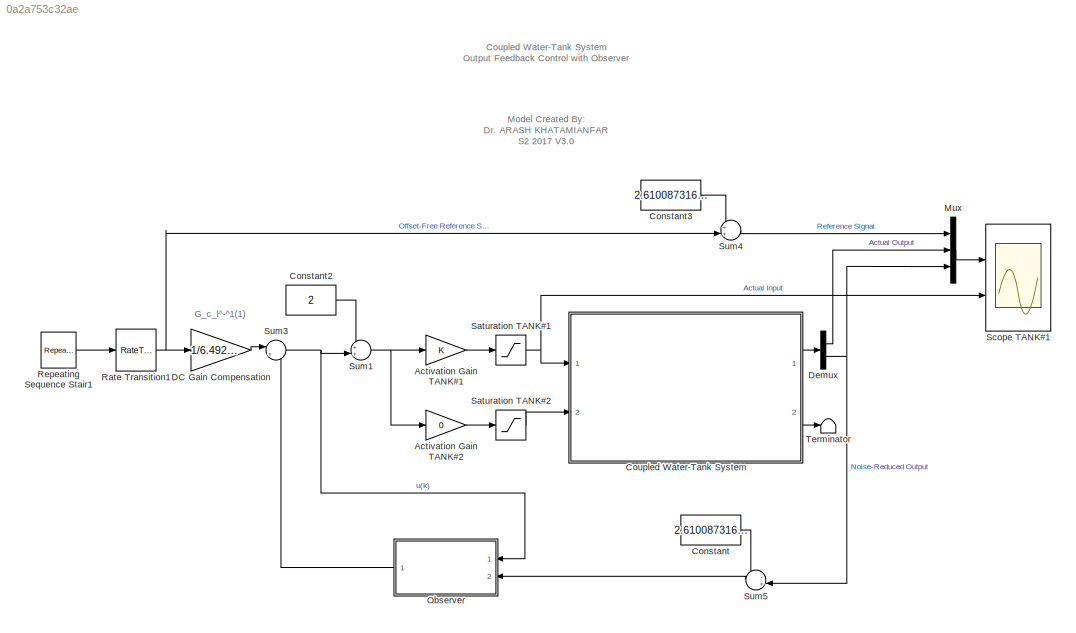
MODEL slx_0a2a753c32ae
KIND model
CONFIG AbsTol = auto
CONFIG FixedStep = 0.75
CONFIG MaxStep = auto
CONFIG MinStep = auto
CONFIG RelTol = 1e-3
CONFIG SampleTimeConstraint = Unconstrained
CONFIG Solver = FixedStepAuto
CONFIG SolverMode = Auto
CONFIG SolverName = FixedStepAuto
CONFIG StartTime = 0.0
CONFIG StopTime = 5*140*0.75
BLOCK [Gain] Activation Gain TANK#1
  OutDataTypeStr = Inherit: Inherit via internal rule
  ParamDataTypeStr = Inherit: Inherit via internal rule
  SaturateOnIntegerOverflow = off
BLOCK [Gain] Activation Gain TANK#2
  Gain = 0
  OutDataTypeStr = Inherit: Inherit via internal rule
  ParamDataTypeStr = Inherit: Inherit via internal rule
  SaturateOnIntegerOverflow = off
BLOCK [Constant] Constant
  Value = 2.610087316176470
BLOCK [Constant] Constant2
  Value = 2
BLOCK [Constant] Constant3
  Value = 2.610087316176470
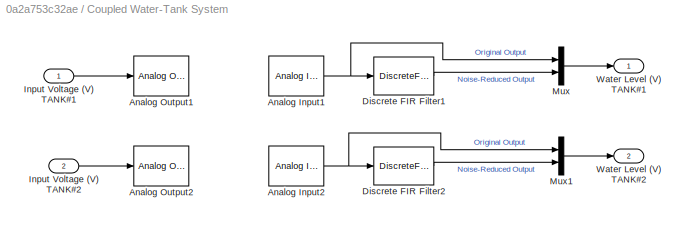
BLOCK [SubSystem] Coupled Water-Tank System
  Ports = [2, 2]
  RequestExecContextInheritance = off
  Variant = off
BLOCK [Reference] Coupled Water-Tank System/Analog Input1  REF=sldrtlib/Analog Input
  AttributesFormatString = National Instruments\nPCI-MIO-16E-4 [auto]
  Ports = [0, 1]
  SourceBlock = sldrtlib/Analog Input
  SourceType = Simulink Desktop Real-Time Analog Input
BLOCK [Reference] Coupled Water-Tank System/Analog Input2  REF=sldrtlib/Analog Input
  AttributesFormatString = National Instruments\nPCI-MIO-16E-4 [auto]
  Ports = [0, 1]
  SourceBlock = sldrtlib/Analog Input
  SourceType = Simulink Desktop Real-Time Analog Input
BLOCK [Reference] Coupled Water-Tank System/Analog Output1  REF=sldrtlib/Analog Output
  AttributesFormatString = National Instruments\nPCI-MIO-16E-4 [auto]
  Ports = [1]
  SourceBlock = sldrtlib/Analog Output
  SourceType = Simulink Desktop Real-Time Analog Output
BLOCK [Reference] Coupled Water-Tank System/Analog Output2  REF=sldrtlib/Analog Output
  AttributesFormatString = National Instruments\nPCI-MIO-16E-4 [auto]
  Ports = [1]
  SourceBlock = sldrtlib/Analog Output
  SourceType = Simulink Desktop Real-Time Analog Output
BLOCK [DiscreteFir] Coupled Water-Tank System/Discrete FIR Filter1
  Coefficients = [0.2 0.2 0.2 0.2 0.2]
  InputPortMap = u0
  OutputPortMap = o0
  Ports = [1, 1]
  SampleTime = 0.75
BLOCK [DiscreteFir] Coupled Water-Tank System/Discrete FIR Filter2
  Coefficients = [0.2 0.2 0.2 0.2 0.2]
  InputPortMap = u0
  OutputPortMap = o0
  Ports = [1, 1]
  SampleTime = 0.75
BLOCK [Inport] Coupled Water-Tank System/Input Voltage (V) TANK#1
  IconDisplay = Port number
BLOCK [Inport] Coupled Water-Tank System/Input Voltage (V) TANK#2
  IconDisplay = Port number
  Port = 2
BLOCK [Mux] Coupled Water-Tank System/Mux
  DisplayOption = bar
  Inputs = 2
  Ports = [2, 1]
BLOCK [Mux] Coupled Water-Tank System/Mux1
  DisplayOption = bar
  Inputs = 2
  Ports = [2, 1]
BLOCK [Outport] Coupled Water-Tank System/Water Level (V) TANK#1
  IconDisplay = Port number
BLOCK [Outport] Coupled Water-Tank System/Water Level (V) TANK#2
  IconDisplay = Port number
  Port = 2
BLOCK [Gain] DC Gain Compensation
  Gain = 1/6.492388116114605
  OutDataTypeStr = Inherit: Inherit via internal rule
  ParamDataTypeStr = Inherit: Inherit via internal rule
  SaturateOnIntegerOverflow = off
BLOCK [Demux] Demux
  DisplayOption = bar
  Outputs = 2
  Ports = [1, 2]
BLOCK [Mux] Mux
  DisplayOption = bar
  Inputs = 3
  Ports = [3, 1]
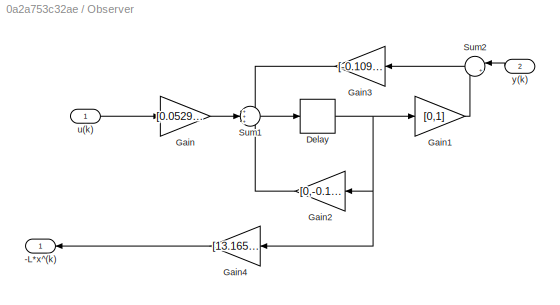
BLOCK [SubSystem] Observer
  Ports = [2, 1]
  RequestExecContextInheritance = off
  Variant = off
BLOCK [Outport] Observer/-L*x^(k)
  IconDisplay = Port number
BLOCK [Delay] Observer/Delay
  DelayLength = 1
  InitialCondition = [0;0]
  InputPortMap = u0
  Ports = [1, 1]
  SampleTime = 0.75
BLOCK [Gain] Observer/Gain
  Gain = [0.052907433346716;0.012016447814430]
  Multiplication = Matrix(K*u)
  OutDataTypeStr = Inherit: Inherit via internal rule
  ParamDataTypeStr = Inherit: Inherit via internal rule
  SaturateOnIntegerOverflow = off
BLOCK [Gain] Observer/Gain1
  Gain = [0,1]
  Multiplication = Matrix(K*u)
  OutDataTypeStr = Inherit: Inherit via internal rule
  ParamDataTypeStr = Inherit: Inherit via internal rule
  SaturateOnIntegerOverflow = off
BLOCK [Gain] Observer/Gain2
  Gain = [0,-0.109214465733547;1,1.086775741297216]
  Multiplication = Matrix(K*u)
  OutDataTypeStr = Inherit: Inherit via internal rule
  ParamDataTypeStr = Inherit: Inherit via internal rule
  SaturateOnIntegerOverflow = off
BLOCK [Gain] Observer/Gain3
  Gain = [-0.109214465733547;1.086775741297216]
  Multiplication = Matrix(K*u)
  OutDataTypeStr = Inherit: Inherit via internal rule
  ParamDataTypeStr = Inherit: Inherit via internal rule
  SaturateOnIntegerOverflow = off
BLOCK [Gain] Observer/Gain4
  Gain = [13.165204656675620,1.388685832247723]
  Multiplication = Matrix(K*u)
  OutDataTypeStr = Inherit: Inherit via internal rule
  ParamDataTypeStr = Inherit: Inherit via internal rule
  SaturateOnIntegerOverflow = off
BLOCK [Sum] Observer/Sum1
  IconShape = round
  InputSameDT = off
  Inputs = +++
  OutDataTypeStr = Inherit: Inherit via internal rule
  Ports = [3, 1]
  SaturateOnIntegerOverflow = off
BLOCK [Sum] Observer/Sum2
  IconShape = round
  InputSameDT = off
  Inputs = |+-
  OutDataTypeStr = Inherit: Inherit via internal rule
  Ports = [2, 1]
  SaturateOnIntegerOverflow = off
BLOCK [Inport] Observer/u(k)
  IconDisplay = Port number
BLOCK [Inport] Observer/y(k)
  IconDisplay = Port number
  Port = 2
BLOCK [RateTransition] Rate Transition1
  OutPortSampleTime = 0.75
BLOCK [Reference] Repeating Sequence Stair1  REF=simulink/Sources/Repeating
Sequence
Stair
  Ports = [0, 1]
  SourceBlock = simulink/Sources/Repeating\nSequence\nStair
  SourceType = Repeating Sequence Stair
BLOCK [Saturate] Saturation TANK#1
  InputPortMap = u0
  LowerLimit = 1.5
  Ports = [1, 1]
  UpperLimit = 2.5
BLOCK [Saturate] Saturation TANK#2
  InputPortMap = u0
  LowerLimit = 0
  Ports = [1, 1]
  UpperLimit = 5
BLOCK [Scope] Scope TANK#1
  NumInputPorts = 2
  Ports = [2]
  ScopeSpecificationString = Simulink.scopes.TimeScopeBlockCfg('CurrentConfiguration', extmgr.ConfigurationSet(extmgr.Configuration('Core','General UI',true,'FigureColor',[0.831372549019608 0.815686274509804 0.784313725490196],'DisplayFullSourceName',true),extmgr.Configuration('Core','Source UI',true),extmgr.Configuration('Sources','WiredSimulink',true,'DataLoggingVariableName','SFLogData','DataLogging',true,'DataLoggingDecim...<+4250ch>
BLOCK [Sum] Sum1
  IconShape = round
  InputSameDT = off
  Inputs = ++|
  OutDataTypeStr = Inherit: Inherit via internal rule
  Ports = [2, 1]
  SaturateOnIntegerOverflow = off
BLOCK [Sum] Sum3
  IconShape = round
  InputSameDT = off
  Inputs = |++
  OutDataTypeStr = Inherit: Inherit via internal rule
  Ports = [2, 1]
  SaturateOnIntegerOverflow = off
BLOCK [Sum] Sum4
  IconShape = round
  InputSameDT = off
  Inputs = ++|
  OutDataTypeStr = Inherit: Inherit via internal rule
  Ports = [2, 1]
  SaturateOnIntegerOverflow = off
BLOCK [Sum] Sum5
  IconShape = round
  InputSameDT = off
  Inputs = -+|
  OutDataTypeStr = Inherit: Inherit via internal rule
  Ports = [2, 1]
  SaturateOnIntegerOverflow = off
BLOCK [Terminator] Terminator
ANNOTATION (root): Coupled Water-Tank System Output Feedback Control with Observer
ANNOTATION (root): G_c_l^-^1(1)
ANNOTATION (root): Model Created By: Dr. ARASH KHATAMIANFAR S2 2017 V3.0
LINE Activation Gain TANK#1:1 -> Saturation TANK#1:1
LINE Activation Gain TANK#2:1 -> Saturation TANK#2:1
LINE Constant2:1 -> Sum1:1
LINE Constant3:1 -> Sum4:1
LINE Constant:1 -> Sum5:1
NET Coupled Water-Tank System/Analog Input1:1 -> Coupled Water-Tank System/Discrete FIR Filter1:1, Coupled Water-Tank System/Mux:1
NET Coupled Water-Tank System/Analog Input2:1 -> Coupled Water-Tank System/Discrete FIR Filter2:1, Coupled Water-Tank System/Mux1:1
LINE Coupled Water-Tank System/Discrete FIR Filter1:1 -> Coupled Water-Tank System/Mux:2
LINE Coupled Water-Tank System/Discrete FIR Filter2:1 -> Coupled Water-Tank System/Mux1:2
LINE Coupled Water-Tank System/Input Voltage (V) TANK#1:1 -> Coupled Water-Tank System/Analog Output1:1
LINE Coupled Water-Tank System/Input Voltage (V) TANK#2:1 -> Coupled Water-Tank System/Analog Output2:1
LINE Coupled Water-Tank System/Mux1:1 -> Coupled Water-Tank System/Water Level (V) TANK#2:1
LINE Coupled Water-Tank System/Mux:1 -> Coupled Water-Tank System/Water Level (V) TANK#1:1
LINE Coupled Water-Tank System:1 -> Demux:1
LINE Coupled Water-Tank System:2 -> Terminator:1
LINE DC Gain Compensation:1 -> Sum3:1
LINE Demux:1 -> Mux:2
NET Demux:2 -> Mux:3, Sum5:2
LINE Mux:1 -> Scope TANK#1:1
NET Observer/Delay:1 -> Observer/Gain1:1, Observer/Gain2:1, Observer/Gain4:1
LINE Observer/Gain1:1 -> Observer/Sum2:2
LINE Observer/Gain2:1 -> Observer/Sum1:3
LINE Observer/Gain3:1 -> Observer/Sum1:1
LINE Observer/Gain4:1 -> Observer/-L*x^(k):1
LINE Observer/Gain:1 -> Observer/Sum1:2
LINE Observer/Sum1:1 -> Observer/Delay:1
LINE Observer/Sum2:1 -> Observer/Gain3:1
LINE Observer/u(k):1 -> Observer/Gain:1
LINE Observer/y(k):1 -> Observer/Sum2:1
LINE Observer:1 -> Sum3:2
NET Rate Transition1:1 -> DC Gain Compensation:1, Sum4:2
LINE Repeating Sequence Stair1:1 -> Rate Transition1:1
NET Saturation TANK#1:1 -> Coupled Water-Tank System:1, Scope TANK#1:2
LINE Saturation TANK#2:1 -> Coupled Water-Tank System:2
NET Sum1:1 -> Activation Gain TANK#1:1, Activation Gain TANK#2:1
NET Sum3:1 -> Observer:1, Sum1:2
LINE Sum4:1 -> Mux:1
LINE Sum5:1 -> Observer:2
note: NET lines group one-source signal fan-out (src -> all destinations, sorted); 1:1 wires keep LINE
